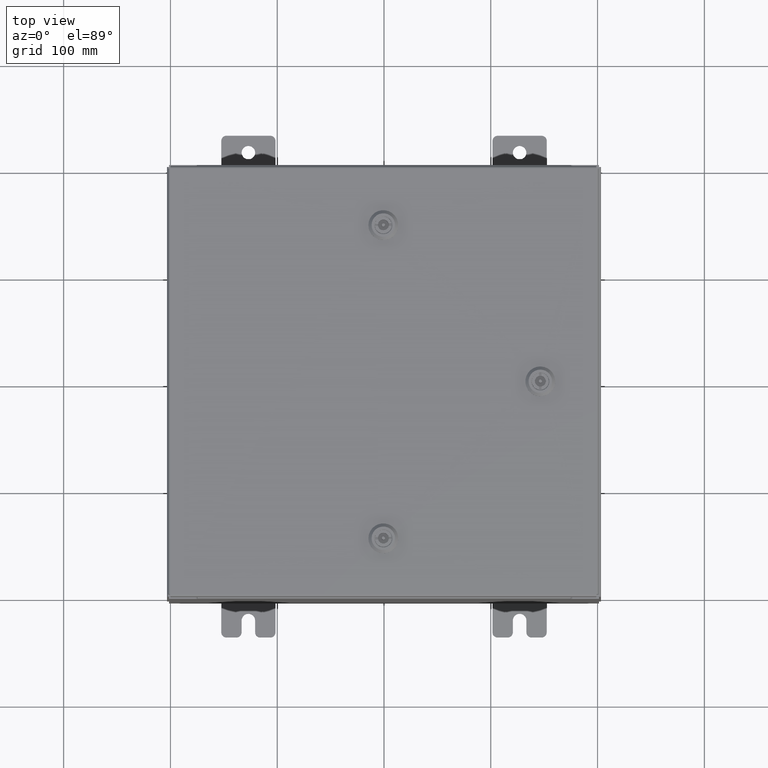
[diagram: clean part render]
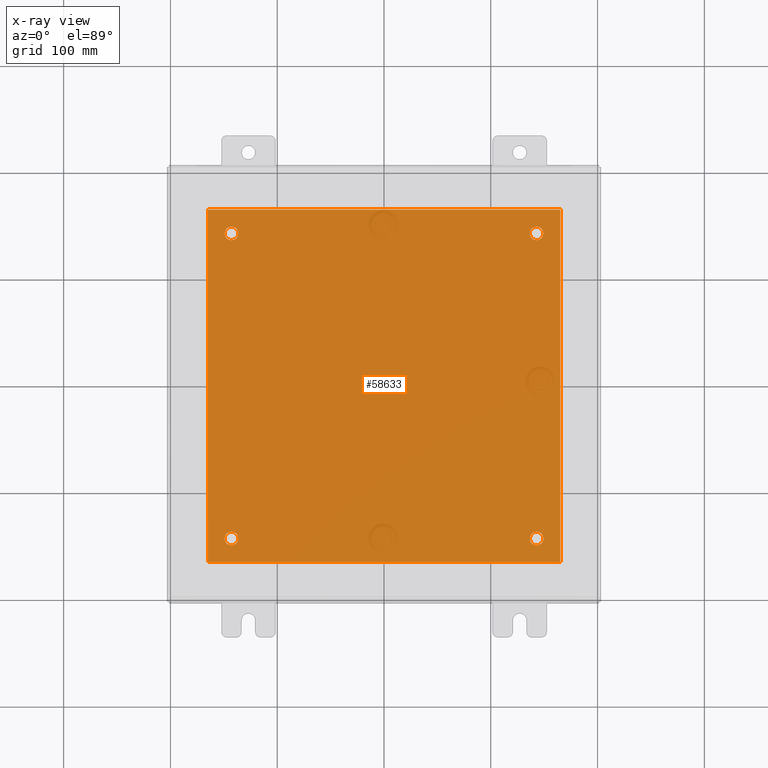
[diagram: x-ray — body ghosted, one internal face saturated and labeled with its STEP entity id]
A machine part, top view, then the same camera in x-ray: the body is ghosted and one INTERNAL B-rep face — a face not visible from any outside direction — is saturated and labeled: STEP entity #58633.
In plain terms, the highlighted planar face has unit normal (0, 0, -1).
Its self-contained STEP definition (entity closure, byte-faithful):
#284 = CARTESIAN_POINT ( 'NONE',  ( 5.625000000000002700, -5.625000000000000900, -0.1039999999999999800 ) ) ;
#1500 = LINE ( 'NONE', #60330, #12876 ) ;
#1604 = DIRECTION ( 'NONE',  ( -1.000000000000000000, 0.0000000000000000000, 0.0000000000000000000 ) ) ;
#1901 = DIRECTION ( 'NONE',  ( -0.0000000000000000000, -0.0000000000000000000, 1.000000000000000000 ) ) ;
#2166 = VERTEX_POINT ( 'NONE', #55654 ) ;
#2470 = DIRECTION ( 'NONE',  ( -0.0000000000000000000, -1.000000000000000000, -0.0000000000000000000 ) ) ;
#3283 = CARTESIAN_POINT ( 'NONE',  ( 5.625000000000002700, 5.625000000000000900, -0.1039999999999999800 ) ) ;
#3583 = CIRCLE ( 'NONE', #16420, 0.2499999999999987000 ) ;
#4403 = EDGE_LOOP ( 'NONE', ( #27687, #18248 ) ) ;
#4551 = DIRECTION ( 'NONE',  ( 0.0000000000000000000, 1.000000000000000000, 0.0000000000000000000 ) ) ;
#4611 = CARTESIAN_POINT ( 'NONE',  ( -6.500000000000000000, 6.500000000000000900, -0.1039999999999999800 ) ) ;
#4661 = DIRECTION ( 'NONE',  ( -0.0000000000000000000, -0.0000000000000000000, 1.000000000000000000 ) ) ;
#5152 = DIRECTION ( 'NONE',  ( -1.000000000000000000, 0.0000000000000000000, 0.0000000000000000000 ) ) ;
#5484 = EDGE_LOOP ( 'NONE', ( #23704, #15014 ) ) ;
#7008 = LINE ( 'NONE', #41546, #31182 ) ;
#7136 = AXIS2_PLACEMENT_3D ( 'NONE', #7800, #41523, #12655 ) ;
#7305 = PLANE ( 'NONE',  #8331 ) ;
#7342 = CARTESIAN_POINT ( 'NONE',  ( -6.500000000000000000, -6.499999999999999100, -0.1039999999999999800 ) ) ;
#7800 = CARTESIAN_POINT ( 'NONE',  ( 5.625000000000002700, -5.625000000000000900, -0.1039999999999999800 ) ) ;
#7951 = VERTEX_POINT ( 'NONE', #31668 ) ;
#8043 = CIRCLE ( 'NONE', #7136, 0.2499999999999987000 ) ;
#8180 = DIRECTION ( 'NONE',  ( -1.000000000000000000, 0.0000000000000000000, 0.0000000000000000000 ) ) ;
#8331 = AXIS2_PLACEMENT_3D ( 'NONE', #12165, #55580, #26750 ) ;
#8678 = AXIS2_PLACEMENT_3D ( 'NONE', #13245, #46950, #18157 ) ;
#8835 = VERTEX_POINT ( 'NONE', #26361 ) ;
#8861 = CIRCLE ( 'NONE', #9783, 0.2499999999999998100 ) ;
#9783 = AXIS2_PLACEMENT_3D ( 'NONE', #16076, #49789, #20958 ) ;
#11442 = EDGE_CURVE ( 'NONE', #11642, #62530, #3583, .T. ) ;
#11642 = VERTEX_POINT ( 'NONE', #26682 ) ;
#12165 = CARTESIAN_POINT ( 'NONE',  ( 0.0000000000000000000, 0.0000000000000000000, -0.1039999999999999800 ) ) ;
#12655 = DIRECTION ( 'NONE',  ( -1.000000000000000000, 0.0000000000000000000, 0.0000000000000000000 ) ) ;
#12680 = DIRECTION ( 'NONE',  ( -1.000000000000000000, -0.0000000000000000000, -0.0000000000000000000 ) ) ;
#12876 = VECTOR ( 'NONE', #2470, 39.37007874015748100 ) ;
#13245 = CARTESIAN_POINT ( 'NONE',  ( -5.625000000000002700, -5.625000000000000900, -0.1039999999999999800 ) ) ;
#13318 = EDGE_CURVE ( 'NONE', #62530, #11642, #8043, .T. ) ;
#13663 = VERTEX_POINT ( 'NONE', #58112 ) ;
#15014 = ORIENTED_EDGE ( 'NONE', *, *, #35000, .T. ) ;
#16076 = CARTESIAN_POINT ( 'NONE',  ( -5.625000000000002700, -5.625000000000000900, -0.1039999999999999800 ) ) ;
#16420 = AXIS2_PLACEMENT_3D ( 'NONE', #284, #34074, #5152 ) ;
#18157 = DIRECTION ( 'NONE',  ( -1.000000000000000000, 0.0000000000000000000, 0.0000000000000000000 ) ) ;
#18248 = ORIENTED_EDGE ( 'NONE', *, *, #11442, .T. ) ;
#18523 = EDGE_CURVE ( 'NONE', #2166, #7951, #33330, .T. ) ;
#19048 = VECTOR ( 'NONE', #4551, 39.37007874015748100 ) ;
#19728 = EDGE_CURVE ( 'NONE', #22276, #20953, #1500, .T. ) ;
#19773 = CIRCLE ( 'NONE', #37137, 0.2499999999999998100 ) ;
#19802 = VERTEX_POINT ( 'NONE', #26790 ) ;
#20234 = ORIENTED_EDGE ( 'NONE', *, *, #18523, .F. ) ;
#20278 = CIRCLE ( 'NONE', #27294, 0.2499999999999998100 ) ;
#20799 = FACE_BOUND ( 'NONE', #39915, .T. ) ;
#20953 = VERTEX_POINT ( 'NONE', #41096 ) ;
#20958 = DIRECTION ( 'NONE',  ( -1.000000000000000000, 0.0000000000000000000, 0.0000000000000000000 ) ) ;
#22276 = VERTEX_POINT ( 'NONE', #4611 ) ;
#23704 = ORIENTED_EDGE ( 'NONE', *, *, #25340, .T. ) ;
#23820 = CARTESIAN_POINT ( 'NONE',  ( 6.500000000000000000, -6.499999999999999100, -0.1039999999999999800 ) ) ;
#23844 = VERTEX_POINT ( 'NONE', #57065 ) ;
#24785 = EDGE_CURVE ( 'NONE', #19802, #13663, #20278, .T. ) ;
#24944 = VERTEX_POINT ( 'NONE', #36427 ) ;
#25340 = EDGE_CURVE ( 'NONE', #24944, #8835, #42044, .T. ) ;
#26361 = CARTESIAN_POINT ( 'NONE',  ( -5.875000000000001800, -5.625000000000000900, -0.1039999999999999800 ) ) ;
#26682 = CARTESIAN_POINT ( 'NONE',  ( 5.375000000000003600, -5.625000000000000900, -0.1039999999999999800 ) ) ;
#26750 = DIRECTION ( 'NONE',  ( -1.000000000000000000, 0.0000000000000000000, -0.0000000000000000000 ) ) ;
#26790 = CARTESIAN_POINT ( 'NONE',  ( -5.375000000000002700, 5.625000000000000900, -0.1039999999999999800 ) ) ;
#27294 = AXIS2_PLACEMENT_3D ( 'NONE', #59483, #30579, #1604 ) ;
#27687 = ORIENTED_EDGE ( 'NONE', *, *, #13318, .T. ) ;
#27967 = ORIENTED_EDGE ( 'NONE', *, *, #61036, .F. ) ;
#28852 = EDGE_LOOP ( 'NONE', ( #33667, #61335 ) ) ;
#30577 = FACE_OUTER_BOUND ( 'NONE', #55358, .T. ) ;
#30579 = DIRECTION ( 'NONE',  ( -0.0000000000000000000, -0.0000000000000000000, 1.000000000000000000 ) ) ;
#30859 = EDGE_CURVE ( 'NONE', #13663, #19802, #19773, .T. ) ;
#30875 = CARTESIAN_POINT ( 'NONE',  ( -5.625000000000002700, 5.625000000000000900, -0.1039999999999999800 ) ) ;
#31182 = VECTOR ( 'NONE', #12680, 39.37007874015748100 ) ;
#31239 = CIRCLE ( 'NONE', #62456, 0.2499999999999987000 ) ;
#31668 = CARTESIAN_POINT ( 'NONE',  ( 6.500000000000000000, 6.500000000000000900, -0.1039999999999999800 ) ) ;
#32075 = FACE_BOUND ( 'NONE', #5484, .T. ) ;
#33330 = LINE ( 'NONE', #23820, #19048 ) ;
#33596 = CARTESIAN_POINT ( 'NONE',  ( 5.625000000000002700, 5.625000000000000900, -0.1039999999999999800 ) ) ;
#33667 = ORIENTED_EDGE ( 'NONE', *, *, #24785, .T. ) ;
#34074 = DIRECTION ( 'NONE',  ( -0.0000000000000000000, -0.0000000000000000000, 1.000000000000000000 ) ) ;
#35000 = EDGE_CURVE ( 'NONE', #8835, #24944, #8861, .T. ) ;
#35692 = DIRECTION ( 'NONE',  ( -1.000000000000000000, 0.0000000000000000000, 0.0000000000000000000 ) ) ;
#36427 = CARTESIAN_POINT ( 'NONE',  ( -5.375000000000002700, -5.625000000000000900, -0.1039999999999999800 ) ) ;
#36467 = LINE ( 'NONE', #7342, #50800 ) ;
#37070 = DIRECTION ( 'NONE',  ( -0.0000000000000000000, -0.0000000000000000000, 1.000000000000000000 ) ) ;
#37137 = AXIS2_PLACEMENT_3D ( 'NONE', #30875, #1901, #35692 ) ;
#38065 = AXIS2_PLACEMENT_3D ( 'NONE', #3283, #37070, #8180 ) ;
#38429 = DIRECTION ( 'NONE',  ( -1.000000000000000000, 0.0000000000000000000, 0.0000000000000000000 ) ) ;
#39100 = ORIENTED_EDGE ( 'NONE', *, *, #59892, .T. ) ;
#39915 = EDGE_LOOP ( 'NONE', ( #39100, #49182 ) ) ;
#40606 = ORIENTED_EDGE ( 'NONE', *, *, #19728, .F. ) ;
#40988 = EDGE_CURVE ( 'NONE', #55628, #23844, #51524, .T. ) ;
#41096 = CARTESIAN_POINT ( 'NONE',  ( -6.500000000000000000, -6.499999999999999100, -0.1039999999999999800 ) ) ;
#41523 = DIRECTION ( 'NONE',  ( -0.0000000000000000000, -0.0000000000000000000, 1.000000000000000000 ) ) ;
#41546 = CARTESIAN_POINT ( 'NONE',  ( -6.500000000000000000, 6.500000000000000900, -0.1039999999999999800 ) ) ;
#42044 = CIRCLE ( 'NONE', #8678, 0.2499999999999998100 ) ;
#43365 = FACE_BOUND ( 'NONE', #28852, .T. ) ;
#46950 = DIRECTION ( 'NONE',  ( -0.0000000000000000000, -0.0000000000000000000, 1.000000000000000000 ) ) ;
#47021 = ORIENTED_EDGE ( 'NONE', *, *, #60266, .F. ) ;
#49182 = ORIENTED_EDGE ( 'NONE', *, *, #40988, .T. ) ;
#49789 = DIRECTION ( 'NONE',  ( -0.0000000000000000000, -0.0000000000000000000, 1.000000000000000000 ) ) ;
#50562 = CARTESIAN_POINT ( 'NONE',  ( 5.375000000000003600, 5.625000000000000900, -0.1039999999999999800 ) ) ;
#50800 = VECTOR ( 'NONE', #60514, 39.37007874015748100 ) ;
#51524 = CIRCLE ( 'NONE', #38065, 0.2499999999999987000 ) ;
#55358 = EDGE_LOOP ( 'NONE', ( #20234, #47021, #40606, #27967 ) ) ;
#55580 = DIRECTION ( 'NONE',  ( 0.0000000000000000000, 0.0000000000000000000, -1.000000000000000000 ) ) ;
#55628 = VERTEX_POINT ( 'NONE', #50562 ) ;
#55654 = CARTESIAN_POINT ( 'NONE',  ( 6.500000000000000000, -6.499999999999999100, -0.1039999999999999800 ) ) ;
#56200 = FACE_BOUND ( 'NONE', #4403, .T. ) ;
#57065 = CARTESIAN_POINT ( 'NONE',  ( 5.875000000000000900, 5.625000000000000900, -0.1039999999999999800 ) ) ;
#58112 = CARTESIAN_POINT ( 'NONE',  ( -5.875000000000001800, 5.625000000000000900, -0.1039999999999999800 ) ) ;
#58633 = ADVANCED_FACE ( 'NONE', ( #32075, #56200, #20799, #43365, #30577 ), #7305, .T. ) ;
#59483 = CARTESIAN_POINT ( 'NONE',  ( -5.625000000000002700, 5.625000000000000900, -0.1039999999999999800 ) ) ;
#59892 = EDGE_CURVE ( 'NONE', #23844, #55628, #31239, .T. ) ;
#60266 = EDGE_CURVE ( 'NONE', #20953, #2166, #36467, .T. ) ;
#60330 = CARTESIAN_POINT ( 'NONE',  ( -6.500000000000000000, -6.499999999999999100, -0.1039999999999999800 ) ) ;
#60514 = DIRECTION ( 'NONE',  ( 1.000000000000000000, 0.0000000000000000000, 0.0000000000000000000 ) ) ;
#61036 = EDGE_CURVE ( 'NONE', #7951, #22276, #7008, .T. ) ;
#61335 = ORIENTED_EDGE ( 'NONE', *, *, #30859, .T. ) ;
#62167 = CARTESIAN_POINT ( 'NONE',  ( 5.875000000000000900, -5.625000000000000900, -0.1039999999999999800 ) ) ;
#62456 = AXIS2_PLACEMENT_3D ( 'NONE', #33596, #4661, #38429 ) ;
#62530 = VERTEX_POINT ( 'NONE', #62167 ) ;